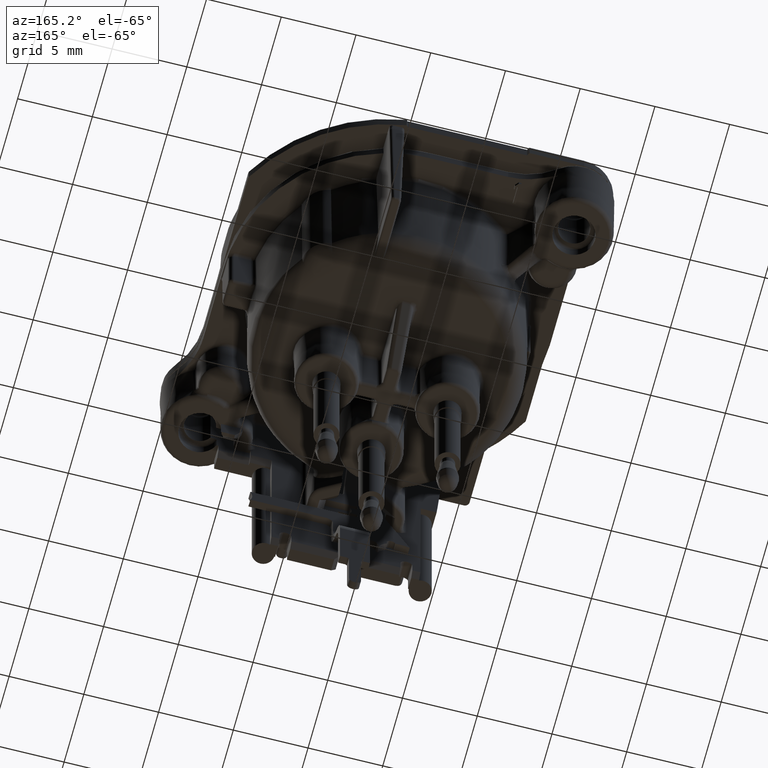
[diagram: clean part render]
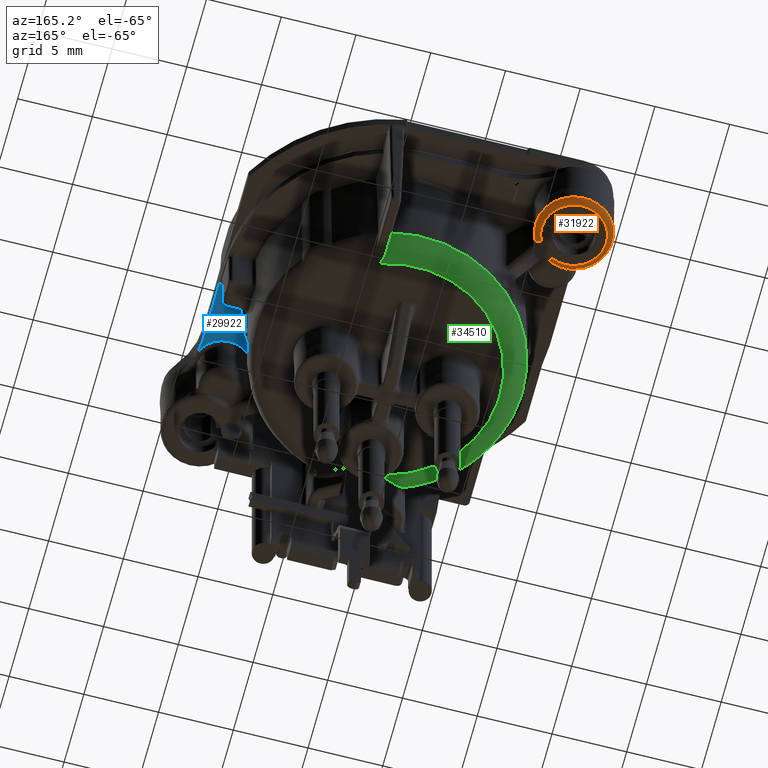
[diagram: same view with three faces highlighted in distinct colors, each labeled with its STEP entity id]
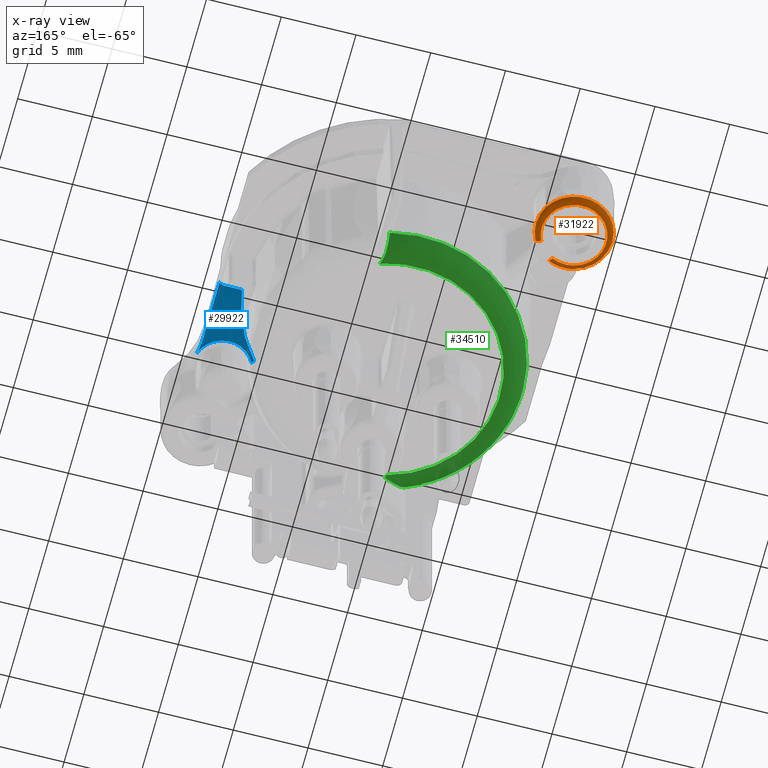
[diagram: x-ray of the same camera — body ghosted, the three highlighted faces saturated]
A machine part, auxiliary view with three faces highlighted in distinct colors.
The next image is the same camera in x-ray (body ghosted, the three faces saturated) — at least one of them is partly hidden behind the body in this view.
Their STEP definitions:

[orange] entity #31922 — the highlighted toroidal blend (fillet) surface has major radius 2.1659 mm and minor (blend) radius 0.4 mm.
#7264=CARTESIAN_POINT('',(-8.950725628800E0,7.953151905080E0,
-5.299995118753E0));
#7286=CARTESIAN_POINT('',(-9.9E0,9.9E0,-5.3E0));
#7287=DIRECTION('',(0.E0,0.E0,1.E0));
#7288=DIRECTION('',(8.988425909518E-1,-4.382716015111E-1,0.E0));
#7289=AXIS2_PLACEMENT_3D('',#7286,#7287,#7288);
#7391=CARTESIAN_POINT('',(-8.950718542454E0,7.953137384656E0,-4.9E0));
#7392=DIRECTION('',(8.988423964180E-1,4.382720004763E-1,0.E0));
#7393=DIRECTION('',(3.959795989773E-1,-8.121058413284E-1,-4.285840170539E-1));
#7394=AXIS2_PLACEMENT_3D('',#7391,#7392,#7393);
#7406=CARTESIAN_POINT('',(-1.071027745021E1,7.465359803604E0,
-4.903490616351E0));
#7407=CARTESIAN_POINT('',(-1.069379740492E1,7.459975064922E0,
-4.914364559708E0));
#7408=CARTESIAN_POINT('',(-1.065764903402E1,7.449464974144E0,
-4.936412267187E0));
#7409=CARTESIAN_POINT('',(-1.059356571780E1,7.434975776099E0,
-4.968907921547E0));
#7410=CARTESIAN_POINT('',(-1.051805483307E1,7.421785781678E0,
-4.999885363834E0));
#7411=CARTESIAN_POINT('',(-1.043021490205E1,7.409924367338E0,
-5.027773440848E0));
#7412=CARTESIAN_POINT('',(-1.032927434191E1,7.399173733145E0,
-5.050818018660E0));
#7413=CARTESIAN_POINT('',(-1.021388246463E1,7.389063488677E0,
-5.067017453869E0));
#7414=CARTESIAN_POINT('',(-1.012702938500E1,7.382445249507E0,
-5.071429923376E0));
#7415=CARTESIAN_POINT('',(-1.008107975314E1,7.379142168890E0,
-5.071428586396E0));
#7417=CARTESIAN_POINT('',(-9.9E0,9.9E0,-5.071428571429E0));
#7418=DIRECTION('',(0.E0,0.E0,1.E0));
#7419=DIRECTION('',(-7.164798084364E-2,-9.974299809215E-1,0.E0));
#7420=AXIS2_PLACEMENT_3D('',#7417,#7418,#7419);
#7422=CARTESIAN_POINT('',(-7.953151902324E0,8.950725635605E0,-4.9E0));
#7423=DIRECTION('',(4.382715996642E-1,8.988425918523E-1,0.E0));
#7424=DIRECTION('',(8.988083666806E-1,-4.382549116246E-1,-8.726535505945E-3));
#7425=AXIS2_PLACEMENT_3D('',#7422,#7423,#7424);
#7455=CARTESIAN_POINT('',(-1.071027745021E1,7.465359803604E0,
-4.903490616351E0));
#7457=CARTESIAN_POINT('',(-9.9E0,9.9E0,-4.903490614199E0));
#7458=DIRECTION('',(0.E0,0.E0,1.E0));
#7459=DIRECTION('',(8.988341300715E-1,-4.382889533385E-1,0.E0));
#7460=AXIS2_PLACEMENT_3D('',#7457,#7458,#7459);
#8629=CARTESIAN_POINT('',(-7.593637093761E0,8.775400271108E0,
-4.903490688813E0));
#19975=VERTEX_POINT('',#7264);
#19977=CARTESIAN_POINT('',(-7.953151904274E0,8.950725631605E0,-5.3E0));
#19978=VERTEX_POINT('',#19977);
#19980=VERTEX_POINT('',#8629);
#20031=VERTEX_POINT('',#7455);
#20034=VERTEX_POINT('',#7415);
#20036=CARTESIAN_POINT('',(-8.792332884283E0,7.628307352998E0,
-5.071428571429E0));
#20037=VERTEX_POINT('',#20036);
#31906=CARTESIAN_POINT('',(-9.9E0,9.9E0,-4.9E0));
#31907=DIRECTION('',(0.E0,0.E0,-1.E0));
#31908=DIRECTION('',(8.851945285301E-1,-4.652210728894E-1,-1.025160352448E-14));
#31909=AXIS2_PLACEMENT_3D('',#31906,#31907,#31908);
#31910=TOROIDAL_SURFACE('',#31909,2.165949984262E0,4.E-1);
#31912=ORIENTED_EDGE('',*,*,#31911,.T.);
#31913=ORIENTED_EDGE('',*,*,#31896,.T.);
#31914=ORIENTED_EDGE('',*,*,#31843,.T.);
#31915=ORIENTED_EDGE('',*,*,#31733,.F.);
#31917=ORIENTED_EDGE('',*,*,#31916,.F.);
#31919=ORIENTED_EDGE('',*,*,#31918,.T.);
#31920=EDGE_LOOP('',(#31912,#31913,#31914,#31915,#31917,#31919));
#31921=FACE_OUTER_BOUND('',#31920,.F.);
#31922=ADVANCED_FACE('',(#31921),#31910,.T.);
#7290=CIRCLE('',#7289,2.165949984262E0);
#7395=CIRCLE('',#7394,3.999919213975E-1);
#7416=B_SPLINE_CURVE_WITH_KNOTS('',3,(#7406,#7407,#7408,#7409,#7410,#7411,#7412,
#7413,#7414,#7415),.UNSPECIFIED.,.F.,.F.,(4,1,1,1,1,1,1,4),(0.E0,
1.428571428571E-1,2.857142857143E-1,4.285714285714E-1,5.714285714286E-1,
7.142857142857E-1,8.571428571429E-1,1.E0),.UNSPECIFIED.);
#7421=CIRCLE('',#7420,2.527353145424E0);
#7426=CIRCLE('',#7425,4.E-1);
#7461=CIRCLE('',#7460,2.565934753487E0);
#31733=EDGE_CURVE('',#19978,#19975,#7290,.T.);
#31843=EDGE_CURVE('',#20037,#19975,#7395,.T.);
#31896=EDGE_CURVE('',#20034,#20037,#7421,.T.);
#31911=EDGE_CURVE('',#20031,#20034,#7416,.T.);
#31916=EDGE_CURVE('',#19980,#19978,#7426,.T.);
#31918=EDGE_CURVE('',#19980,#20031,#7461,.T.);

[blue] entity #29922 — the highlighted planar face has unit normal (0, 0, -1).
#5748=CARTESIAN_POINT('',(9.2E0,-7.E0,-1.E0));
#5749=DIRECTION('',(0.E0,0.E0,1.E0));
#5750=DIRECTION('',(9.519259096566E-1,3.063283573626E-1,0.E0));
#5751=AXIS2_PLACEMENT_3D('',#5748,#5749,#5750);
#5753=CARTESIAN_POINT('',(1.59E1,-5.235238484124E0,-1.E0));
#5754=DIRECTION('',(0.E0,0.E0,1.E0));
#5755=DIRECTION('',(-1.E0,0.E0,0.E0));
#5756=AXIS2_PLACEMENT_3D('',#5753,#5754,#5755);
#5758=DIRECTION('',(6.983708814763E-6,-9.999999999756E-1,3.163963063708E-7));
#5759=VECTOR('',#5758,4.073512020291E0);
#5760=CARTESIAN_POINT('',(1.089997155178E1,-1.161726463933E0,
-1.000001288844E0));
#5761=LINE('',#5760,#5759);
#5762=CARTESIAN_POINT('',(1.052000000059E1,-1.297393363152E0,
-1.000001544859E0));
#5763=CARTESIAN_POINT('',(1.056671540122E1,-1.297408715291E0,
-9.999925854064E-1));
#5764=CARTESIAN_POINT('',(1.065720045394E1,-1.286849882723E0,
-1.000003043109E0));
#5765=CARTESIAN_POINT('',(1.078780646390E1,-1.240070886228E0,
-1.000000471008E0));
#5766=CARTESIAN_POINT('',(1.086403904062E1,-1.191128362822E0,
-9.999968722428E-1));
#5767=CARTESIAN_POINT('',(1.089997155178E1,-1.161726463933E0,
-1.000001288844E0));
#5769=DIRECTION('',(9.999999999991E-1,2.286269526801E-11,-1.334353009346E-6));
#5770=VECTOR('',#5769,1.157759089802E0);
#5771=CARTESIAN_POINT('',(9.362240910792E0,-1.297393363178E0,-1.E0));
#5772=LINE('',#5771,#5770);
#5773=CARTESIAN_POINT('',(0.E0,0.E0,-1.000000000001E0));
#5774=DIRECTION('',(0.E0,0.E0,1.E0));
#5775=DIRECTION('',(7.770771924413E-1,-6.294053042258E-1,0.E0));
#5776=AXIS2_PLACEMENT_3D('',#5773,#5774,#5775);
#5778=CARTESIAN_POINT('',(7.351705535863E0,-6.082599670873E0,
-1.000000000012E0));
#5779=CARTESIAN_POINT('',(7.344623420706E0,-6.075522837312E0,
-1.000000000012E0));
#5780=CARTESIAN_POINT('',(7.333138117949E0,-6.059988567502E0,
-9.999999999946E-1));
#5781=CARTESIAN_POINT('',(7.322951618224E0,-6.031904571272E0,
-1.000000000001E0));
#5782=CARTESIAN_POINT('',(7.321407958961E0,-6.002338475986E0,
-1.000000000002E0));
#5783=CARTESIAN_POINT('',(7.328619683468E0,-5.973340230984E0,
-9.999999999929E-1));
#5784=CARTESIAN_POINT('',(7.338414601059E0,-5.956719757381E0,
-1.000000000016E0));
#5785=CARTESIAN_POINT('',(7.344706728468E0,-5.948955158957E0,
-1.000000000016E0));
#5787=DIRECTION('',(-7.071067810203E-1,7.071067813528E-1,-8.664781993706E-11));
#5788=VECTOR('',#5787,1.388140430183E-1);
#5789=CARTESIAN_POINT('',(7.449861886982E0,-6.180756022038E0,-1.E0));
#5790=LINE('',#5789,#5788);
#10396=CARTESIAN_POINT('',(1.089997155178E1,-1.161726463933E0,
-1.000001288844E0));
#20318=VERTEX_POINT('',#10396);
#20341=CARTESIAN_POINT('',(7.449861886982E0,-6.180756022038E0,-1.E0));
#20342=CARTESIAN_POINT('',(7.351705535863E0,-6.082599670873E0,
-1.000000000012E0));
#20343=VERTEX_POINT('',#20341);
#20344=VERTEX_POINT('',#20342);
#20349=CARTESIAN_POINT('',(7.344706152401E0,-5.948954692362E0,
-1.000000000001E0));
#20350=CARTESIAN_POINT('',(9.362240176481E0,-1.297393261420E0,
-1.000000000001E0));
#20351=VERTEX_POINT('',#20349);
#20352=VERTEX_POINT('',#20350);
#20357=CARTESIAN_POINT('',(1.052000000059E1,-1.297393363152E0,
-1.000001544859E0));
#20358=VERTEX_POINT('',#20357);
#20364=CARTESIAN_POINT('',(1.09E1,-5.235238484124E0,-1.E0));
#20365=VERTEX_POINT('',#20364);
#20370=CARTESIAN_POINT('',(1.103949531006E1,-6.408053115279E0,-1.E0));
#20371=VERTEX_POINT('',#20370);
#29899=CARTESIAN_POINT('',(0.E0,0.E0,-1.E0));
#29900=DIRECTION('',(0.E0,0.E0,-1.E0));
#29901=DIRECTION('',(0.E0,-1.E0,0.E0));
#29902=AXIS2_PLACEMENT_3D('',#29899,#29900,#29901);
#29903=PLANE('',#29902);
#29905=ORIENTED_EDGE('',*,*,#29904,.F.);
#29907=ORIENTED_EDGE('',*,*,#29906,.F.);
#29909=ORIENTED_EDGE('',*,*,#29908,.F.);
#29911=ORIENTED_EDGE('',*,*,#29910,.F.);
#29913=ORIENTED_EDGE('',*,*,#29912,.F.);
#29915=ORIENTED_EDGE('',*,*,#29914,.F.);
#29917=ORIENTED_EDGE('',*,*,#29916,.F.);
#29919=ORIENTED_EDGE('',*,*,#29918,.F.);
#29920=EDGE_LOOP('',(#29905,#29907,#29909,#29911,#29913,#29915,#29917,#29919));
#29921=FACE_OUTER_BOUND('',#29920,.F.);
#29922=ADVANCED_FACE('',(#29921),#29903,.T.);
#5752=CIRCLE('',#5751,1.932393363178E0);
#5757=CIRCLE('',#5756,5.E0);
#5768=B_SPLINE_CURVE_WITH_KNOTS('',3,(#5762,#5763,#5764,#5765,#5766,#5767),
.UNSPECIFIED.,.F.,.F.,(4,1,1,4),(0.E0,3.333333333333E-1,6.666666666667E-1,1.E0),
.UNSPECIFIED.);
#5777=CIRCLE('',#5776,9.451707274186E0);
#5786=B_SPLINE_CURVE_WITH_KNOTS('',3,(#5778,#5779,#5780,#5781,#5782,#5783,#5784,
#5785),.UNSPECIFIED.,.F.,.F.,(4,1,1,1,1,4),(0.E0,2.E-1,4.E-1,6.E-1,8.E-1,1.E0),
.UNSPECIFIED.);
#29904=EDGE_CURVE('',#20371,#20343,#5752,.T.);
#29906=EDGE_CURVE('',#20365,#20371,#5757,.T.);
#29908=EDGE_CURVE('',#20318,#20365,#5761,.T.);
#29910=EDGE_CURVE('',#20358,#20318,#5768,.T.);
#29912=EDGE_CURVE('',#20352,#20358,#5772,.T.);
#29914=EDGE_CURVE('',#20351,#20352,#5777,.T.);
#29916=EDGE_CURVE('',#20344,#20351,#5786,.T.);
#29918=EDGE_CURVE('',#20343,#20344,#5790,.T.);

[green] entity #34510 — the highlighted toroidal blend (fillet) surface has major radius 7.556 mm and minor (blend) radius 1.5 mm.
#7791=CARTESIAN_POINT('',(0.E0,0.E0,-9.218143833827E0));
#7792=DIRECTION('',(0.E0,0.E0,-1.E0));
#7793=DIRECTION('',(-3.834151476511E-1,-9.235761065292E-1,0.E0));
#7794=AXIS2_PLACEMENT_3D('',#7791,#7792,#7793);
#7799=CARTESIAN_POINT('',(2.143448234210E0,8.798578972887E0,-9.218143833916E0));
#8996=CARTESIAN_POINT('',(0.E0,0.E0,-1.07E1));
#8997=DIRECTION('',(0.E0,0.E0,-1.E0));
#8998=DIRECTION('',(-2.481705752145E-1,-9.687163494015E-1,0.E0));
#8999=AXIS2_PLACEMENT_3D('',#8996,#8997,#8998);
#9001=CARTESIAN_POINT('',(2.165884043396E0,8.010608203059E0,-1.050349048129E1));
#9002=CARTESIAN_POINT('',(2.164966893776E0,8.106444777932E0,-1.045094701476E1));
#9003=CARTESIAN_POINT('',(2.162848211516E0,8.282021089447E0,-1.032956778937E1));
#9004=CARTESIAN_POINT('',(2.158722259580E0,8.505026281510E0,-1.009319216129E1));
#9005=CARTESIAN_POINT('',(2.154051186664E0,8.667609406915E0,-9.825586573177E0));
#9006=CARTESIAN_POINT('',(2.148806999409E0,8.772035228946E0,-9.525147286543E0));
#9007=CARTESIAN_POINT('',(2.145261226491E0,8.796844111703E0,-9.322010092094E0));
#9008=CARTESIAN_POINT('',(2.143448234209E0,8.798578972886E0,-9.218143833828E0));
#9010=CARTESIAN_POINT('',(-3.186570234963E0,-8.174123699819E0,
-1.007647764160E1));
#9011=CARTESIAN_POINT('',(-3.230799013897E0,-8.195326015019E0,
-1.002672568951E1));
#9012=CARTESIAN_POINT('',(-3.310469571703E0,-8.239759527802E0,
-9.915659222714E0));
#9013=CARTESIAN_POINT('',(-3.400414296731E0,-8.302933601352E0,
-9.712844379805E0));
#9014=CARTESIAN_POINT('',(-3.457487492937E0,-8.350414897777E0,
-9.474338237215E0));
#9015=CARTESIAN_POINT('',(-3.471325654704E0,-8.363020882371E0,
-9.305073205424E0));
#9016=CARTESIAN_POINT('',(-3.472170252292E0,-8.363812920475E0,
-9.218089827795E0));
#9018=CARTESIAN_POINT('',(-1.874724380821E0,-7.554635970448E0,
-1.068260835405E1));
#9019=CARTESIAN_POINT('',(-1.997913454356E0,-7.612053804676E0,
-1.066949037198E1));
#9020=CARTESIAN_POINT('',(-2.231784658750E0,-7.721395454793E0,
-1.062860281796E1));
#9021=CARTESIAN_POINT('',(-2.537011061131E0,-7.865048567740E0,
-1.053031153508E1));
#9022=CARTESIAN_POINT('',(-2.798668651708E0,-7.988955224567E0,
-1.040137696809E1));
#9023=CARTESIAN_POINT('',(-3.016711027271E0,-8.092808301686E0,
-1.024876118507E1));
#9024=CARTESIAN_POINT('',(-3.134579296550E0,-8.149201706555E0,
-1.013495502072E1));
#9025=CARTESIAN_POINT('',(-3.186570234963E0,-8.174123699819E0,
-1.007647764160E1));
#9027=CARTESIAN_POINT('',(-1.875179796086E0,-7.319632172208E0,-1.07E1));
#9028=CARTESIAN_POINT('',(-1.875179796086E0,-7.359263677969E0,-1.07E1));
#9029=CARTESIAN_POINT('',(-1.875102699874E0,-7.438063751256E0,
-1.069705583379E1));
#9030=CARTESIAN_POINT('',(-1.874875350703E0,-7.515930910056E0,
-1.068837366123E1));
#9031=CARTESIAN_POINT('',(-1.874724380821E0,-7.554635970448E0,
-1.068260835405E1));
#15362=CARTESIAN_POINT('',(2.165884043396E0,8.010608203059E0,
-1.050349048129E1));
#15363=CARTESIAN_POINT('',(2.166259861360E0,7.971337504257E0,
-1.052502107804E1));
#15364=CARTESIAN_POINT('',(2.173657465622E0,7.891702828622E0,
-1.056332345530E1));
#15365=CARTESIAN_POINT('',(2.195621887001E0,7.772186881496E0,
-1.060843779409E1));
#15366=CARTESIAN_POINT('',(2.224062910522E0,7.653205564886E0,
-1.064319909465E1));
#15367=CARTESIAN_POINT('',(2.256485104727E0,7.534740933927E0,
-1.066905557654E1));
#15368=CARTESIAN_POINT('',(2.291712394100E0,7.415465338227E0,
-1.068708786311E1));
#15369=CARTESIAN_POINT('',(2.328350496688E0,7.296333672725E0,
-1.069765540558E1));
#15370=CARTESIAN_POINT('',(2.353363057534E0,7.216210656670E0,-1.07E1));
#15371=CARTESIAN_POINT('',(2.365853582427E0,7.176074918129E0,-1.07E1));
#19953=VERTEX_POINT('',#9010);
#19954=VERTEX_POINT('',#9016);
#19955=VERTEX_POINT('',#9018);
#19957=VERTEX_POINT('',#9027);
#21152=VERTEX_POINT('',#7799);
#21171=CARTESIAN_POINT('',(2.365853582427E0,7.176074918129E0,-1.07E1));
#21172=VERTEX_POINT('',#21171);
#21173=CARTESIAN_POINT('',(2.165884043396E0,8.010608203059E0,
-1.050349048129E1));
#21175=VERTEX_POINT('',#21173);
#34492=CARTESIAN_POINT('',(0.E0,0.E0,-9.2E0));
#34493=DIRECTION('',(0.E0,0.E0,-1.E0));
#34494=DIRECTION('',(0.E0,-1.E0,0.E0));
#34495=AXIS2_PLACEMENT_3D('',#34492,#34493,#34494);
#34496=TOROIDAL_SURFACE('',#34495,7.556011805448E0,1.5E0);
#34498=ORIENTED_EDGE('',*,*,#34497,.T.);
#34500=ORIENTED_EDGE('',*,*,#34499,.F.);
#34501=ORIENTED_EDGE('',*,*,#34458,.T.);
#34502=ORIENTED_EDGE('',*,*,#32347,.F.);
#34504=ORIENTED_EDGE('',*,*,#34503,.F.);
#34506=ORIENTED_EDGE('',*,*,#34505,.F.);
#34507=ORIENTED_EDGE('',*,*,#29839,.F.);
#34508=EDGE_LOOP('',(#34498,#34500,#34501,#34502,#34504,#34506,#34507));
#34509=FACE_OUTER_BOUND('',#34508,.F.);
#34510=ADVANCED_FACE('',(#34509),#34496,.T.);
#7795=CIRCLE('',#7794,9.055902068532E0);
#9000=CIRCLE('',#8999,7.556011805448E0);
#9009=B_SPLINE_CURVE_WITH_KNOTS('',3,(#9001,#9002,#9003,#9004,#9005,#9006,#9007,
#9008),.UNSPECIFIED.,.F.,.F.,(4,1,1,1,1,4),(0.E0,2.E-1,4.E-1,6.E-1,8.E-1,1.E0),
.UNSPECIFIED.);
#9017=B_SPLINE_CURVE_WITH_KNOTS('',3,(#9010,#9011,#9012,#9013,#9014,#9015,
#9016),.UNSPECIFIED.,.F.,.F.,(4,1,1,1,4),(0.E0,2.5E-1,5.E-1,7.5E-1,1.E0),
.UNSPECIFIED.);
#9026=B_SPLINE_CURVE_WITH_KNOTS('',3,(#9018,#9019,#9020,#9021,#9022,#9023,#9024,
#9025),.UNSPECIFIED.,.F.,.F.,(4,1,1,1,1,4),(0.E0,2.E-1,4.E-1,6.E-1,8.E-1,1.E0),
.UNSPECIFIED.);
#9032=B_SPLINE_CURVE_WITH_KNOTS('',3,(#9027,#9028,#9029,#9030,#9031),
.UNSPECIFIED.,.F.,.F.,(4,1,4),(0.E0,5.E-1,1.E0),.UNSPECIFIED.);
#15372=B_SPLINE_CURVE_WITH_KNOTS('',3,(#15362,#15363,#15364,#15365,#15366,
#15367,#15368,#15369,#15370,#15371),.UNSPECIFIED.,.F.,.F.,(4,1,1,1,1,1,1,4),(
0.E0,1.428571428571E-1,2.857142857143E-1,4.285714285714E-1,5.714285714286E-1,
7.142857142857E-1,8.571428571429E-1,1.E0),.UNSPECIFIED.);
#29839=EDGE_CURVE('',#19957,#19955,#9032,.T.);
#32347=EDGE_CURVE('',#19954,#21152,#7795,.T.);
#34458=EDGE_CURVE('',#21175,#21152,#9009,.T.);
#34497=EDGE_CURVE('',#19957,#21172,#9000,.T.);
#34499=EDGE_CURVE('',#21175,#21172,#15372,.T.);
#34503=EDGE_CURVE('',#19953,#19954,#9017,.T.);
#34505=EDGE_CURVE('',#19955,#19953,#9026,.T.);